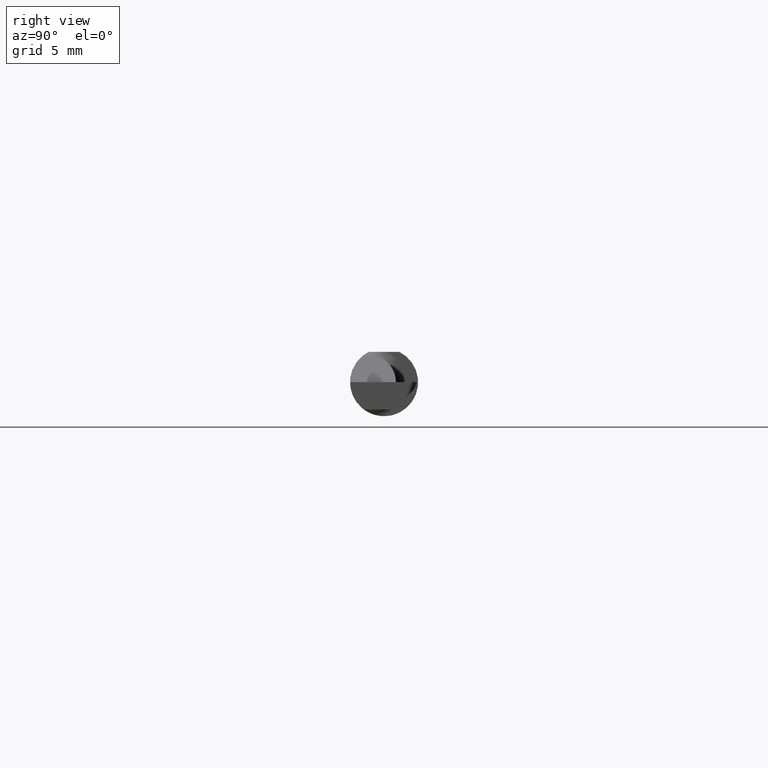
[diagram: clean part render]
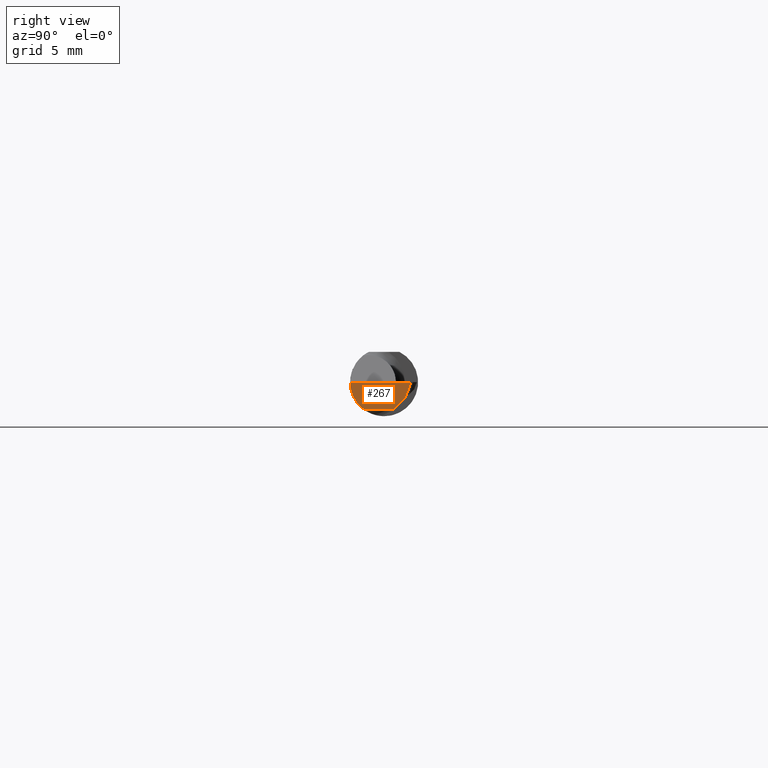
[diagram: same view with one face highlighted and labeled with its STEP entity id]
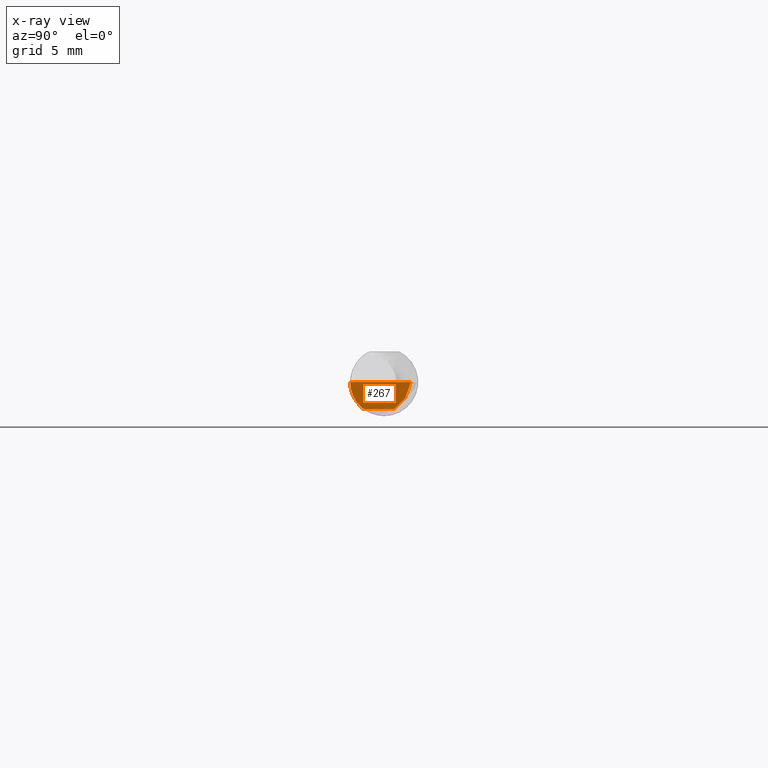
[diagram: x-ray of the same camera — body ghosted, the highlighted face saturated]
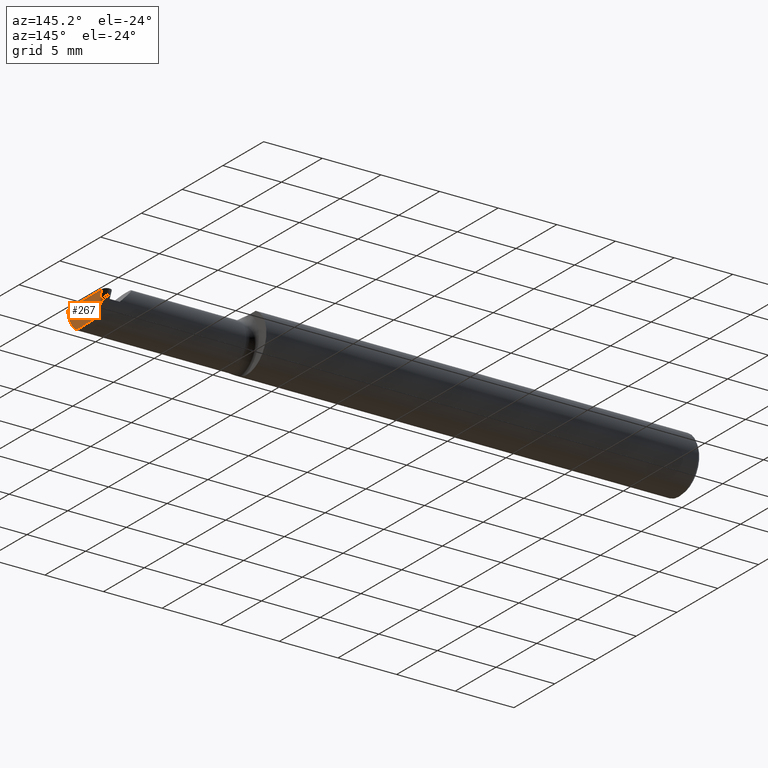
[diagram: same view with one face highlighted and labeled with its STEP entity id]
A machine part, right view. The second image highlights one B-rep face of the part: STEP entity #267.
The next image is the same camera in x-ray: the body ghosted, the highlighted face saturated — about 0% of this face is hidden behind the body in this view.
A second angle (auxiliary view) of the same face is appended — the face is thin or edge-on in the first view.
In plain terms, the highlighted planar face has unit normal (-0.9992, 0.0174, 0.0349).
Its self-contained STEP definition (entity closure, byte-faithful):
#54 = LINE ( 'NONE', #268, #674 ) ;
#65 = PLANE ( 'NONE',  #210 ) ;
#66 = VERTEX_POINT ( 'NONE', #684 ) ;
#76 = DIRECTION ( 'NONE',  ( 0.03490480639812536257, 0.000000000000000000, 0.9993906415863165194 ) ) ;
#78 = VERTEX_POINT ( 'NONE', #349 ) ;
#127 = LINE ( 'NONE', #550, #139 ) ;
#136 = CARTESIAN_POINT ( 'NONE',  ( 1.995364534437481741, -0.04049631676287023668, -0.07500000000000002498 ) ) ;
#139 = VECTOR ( 'NONE', #664, 39.37007874015748854 ) ;
#152 = CARTESIAN_POINT ( 'NONE',  ( 1.998141998353699433, 0.05785528259492388886, -0.04462928295401852319 ) ) ;
#157 = VECTOR ( 'NONE', #198, 39.37007874015748854 ) ;
#175 = VERTEX_POINT ( 'NONE', #309 ) ;
#177 = EDGE_LOOP ( 'NONE', ( #275, #424, #222, #580, #362, #479 ) ) ;
#183 = EDGE_CURVE ( 'NONE', #653, #609, #401, .T. ) ;
#198 = DIRECTION ( 'NONE',  ( -0.01745240643727633684, -0.9998476951563912696, 0.000000000000000000 ) ) ;
#201 = CARTESIAN_POINT ( 'NONE',  ( 1.995236768857725718, -0.04781600192481505474, -0.07500000000000005274 ) ) ;
#210 = AXIS2_PLACEMENT_3D ( 'NONE', #504, #562, #76 ) ;
#215 =( BOUNDED_CURVE ( )  B_SPLINE_CURVE ( 3, ( #426, #350, #675, #244 ),
 .UNSPECIFIED., .F., .F. ) 
 B_SPLINE_CURVE_WITH_KNOTS ( ( 4, 4 ),
 ( 0.2063001339125335731, 1.107331509589563945 ),
 .UNSPECIFIED. ) 
 CURVE ( )  GEOMETRIC_REPRESENTATION_ITEM ( )  RATIONAL_B_SPLINE_CURVE ( ( 1.000000000000000000, 0.9334817841311873199, 0.9334817841311873199, 1.000000000000000000 ) ) 
 REPRESENTATION_ITEM ( '' )  );
#222 = ORIENTED_EDGE ( 'NONE', *, *, #525, .T. ) ;
#244 = CARTESIAN_POINT ( 'NONE',  ( 1.997057062866469668, -0.09360000000000001652, 0.000000000000000000 ) ) ;
#267 = ADVANCED_FACE ( 'NONE', ( #669 ), #65, .F. ) ;
#268 = CARTESIAN_POINT ( 'NONE',  ( 1.996745115830019568, 0.03118762788560754812, -0.07129693766333514149 ) ) ;
#275 = ORIENTED_EDGE ( 'NONE', *, *, #601, .F. ) ;
#290 = DIRECTION ( 'NONE',  ( -0.01745240643727633684, -0.9998476951563912696, 0.000000000000000000 ) ) ;
#309 = CARTESIAN_POINT ( 'NONE',  ( 1.999984260029693539, 0.07409901316683065176, 0.000000000000000000 ) ) ;
#334 = CARTESIAN_POINT ( 'NONE',  ( 1.995113740419715231, -0.05810704225352106983, -0.07337936794867833123 ) ) ;
#337 = EDGE_CURVE ( 'NONE', #78, #609, #415, .T. ) ;
#348 = LINE ( 'NONE', #563, #372 ) ;
#349 = CARTESIAN_POINT ( 'NONE',  ( 1.996551145152111628, 0.02748456554894272708, -0.07500000000000002498 ) ) ;
#350 = CARTESIAN_POINT ( 'NONE',  ( 1.995346537079453419, -0.08092595952420826577, -0.05530971394246250034 ) ) ;
#362 = ORIENTED_EDGE ( 'NONE', *, *, #183, .T. ) ;
#369 = DIRECTION ( 'NONE',  ( -0.03701368837992437266, -0.7066222423871552083, -0.7066222423871628688 ) ) ;
#372 = VECTOR ( 'NONE', #290, 39.37007874015748143 ) ;
#401 =( BOUNDED_CURVE ( )  B_SPLINE_CURVE ( 3, ( #334, #552, #201, #637 ),
 .UNSPECIFIED., .F., .F. ) 
 B_SPLINE_CURVE_WITH_KNOTS ( ( 4, 4 ),
 ( 0.2552020043920786851, 0.4634648172053384974 ),
 .UNSPECIFIED. ) 
 CURVE ( )  GEOMETRIC_REPRESENTATION_ITEM ( )  RATIONAL_B_SPLINE_CURVE ( ( 1.000000000000000000, 0.9963888149483994816, 0.9963888149483994816, 1.000000000000000000 ) ) 
 REPRESENTATION_ITEM ( '' )  );
#415 = LINE ( 'NONE', #136, #157 ) ;
#421 = EDGE_CURVE ( 'NONE', #594, #175, #127, .T. ) ;
#424 = ORIENTED_EDGE ( 'NONE', *, *, #421, .T. ) ;
#426 = CARTESIAN_POINT ( 'NONE',  ( 1.995113740419715231, -0.05810704225352106983, -0.07337936794867833123 ) ) ;
#447 = CARTESIAN_POINT ( 'NONE',  ( 1.995327814509989528, -0.04259999999999973530, -0.07500000000000002498 ) ) ;
#456 = EDGE_CURVE ( 'NONE', #653, #66, #215, .T. ) ;
#479 = ORIENTED_EDGE ( 'NONE', *, *, #337, .F. ) ;
#504 = CARTESIAN_POINT ( 'NONE',  ( 1.999997674911211609, 0.07486755121428030624, 0.000000000000000000 ) ) ;
#525 = EDGE_CURVE ( 'NONE', #175, #66, #348, .T. ) ;
#534 = CARTESIAN_POINT ( 'NONE',  ( 1.995113740419715231, -0.05810704225352106983, -0.07337936794867833123 ) ) ;
#550 = CARTESIAN_POINT ( 'NONE',  ( 1.999994460970140109, 0.07418895767924950368, 0.0002471205168746652800 ) ) ;
#552 = CARTESIAN_POINT ( 'NONE',  ( 1.995165152206654691, -0.05300374992736044816, -0.07445783144524577291 ) ) ;
#562 = DIRECTION ( 'NONE',  ( -0.9992386149554827179, 0.01744177490282298668, 0.03489949670250104552 ) ) ;
#563 = CARTESIAN_POINT ( 'NONE',  ( 1.999997674911211609, 0.07486755121428030624, 0.000000000000000000 ) ) ;
#580 = ORIENTED_EDGE ( 'NONE', *, *, #456, .F. ) ;
#594 = VERTEX_POINT ( 'NONE', #152 ) ;
#601 = EDGE_CURVE ( 'NONE', #594, #78, #54, .T. ) ;
#609 = VERTEX_POINT ( 'NONE', #447 ) ;
#637 = CARTESIAN_POINT ( 'NONE',  ( 1.995327814509989528, -0.04259999999999973530, -0.07500000000000002498 ) ) ;
#653 = VERTEX_POINT ( 'NONE', #534 ) ;
#664 = DIRECTION ( 'NONE',  ( 0.03876062227022335910, 0.3417631236437464470, 0.9389864650134710500 ) ) ;
#669 = FACE_OUTER_BOUND ( 'NONE', #177, .T. ) ;
#674 = VECTOR ( 'NONE', #369, 39.37007874015748143 ) ;
#675 = CARTESIAN_POINT ( 'NONE',  ( 1.996040470437265402, -0.09360000000000003040, -0.02910696448121681199 ) ) ;
#684 = CARTESIAN_POINT ( 'NONE',  ( 1.997057062866469668, -0.09360000000000001652, 0.000000000000000000 ) ) ;